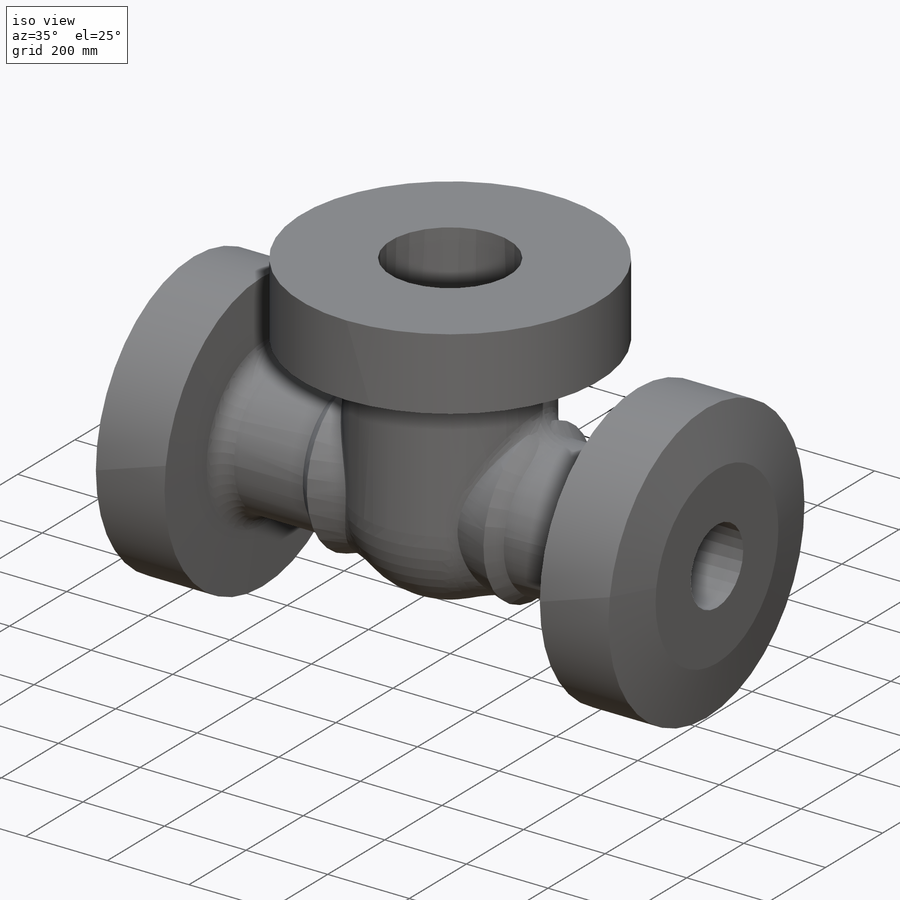
[diagram: iso view]
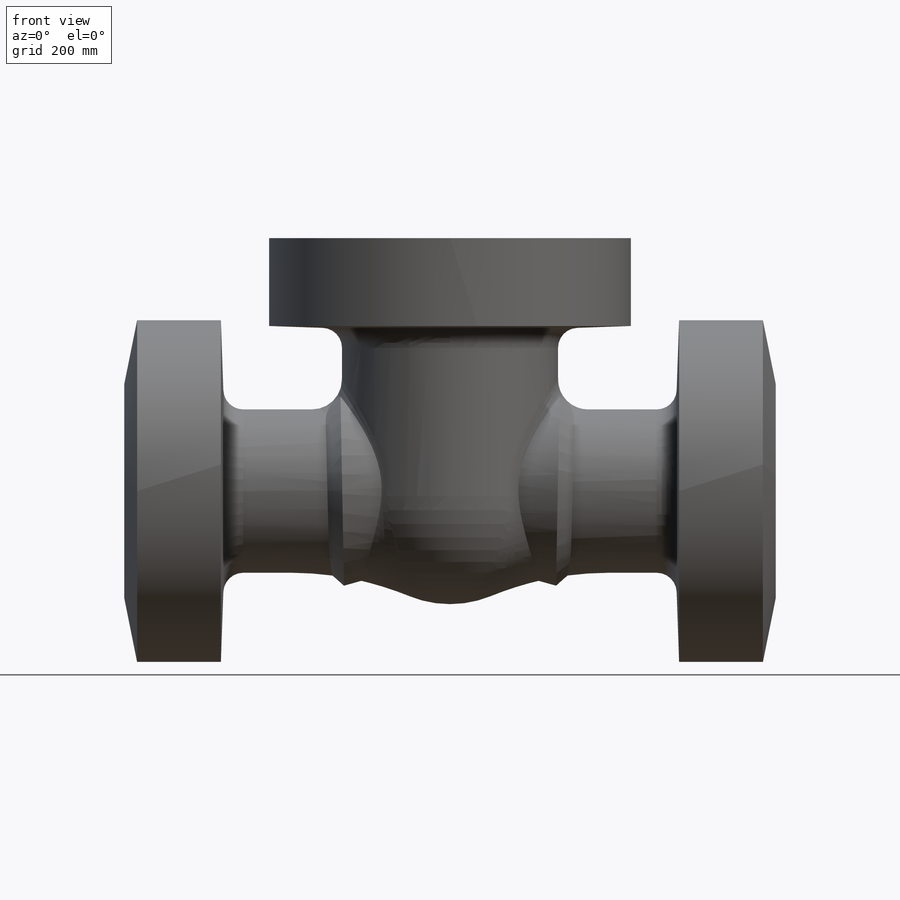
[diagram: front view]
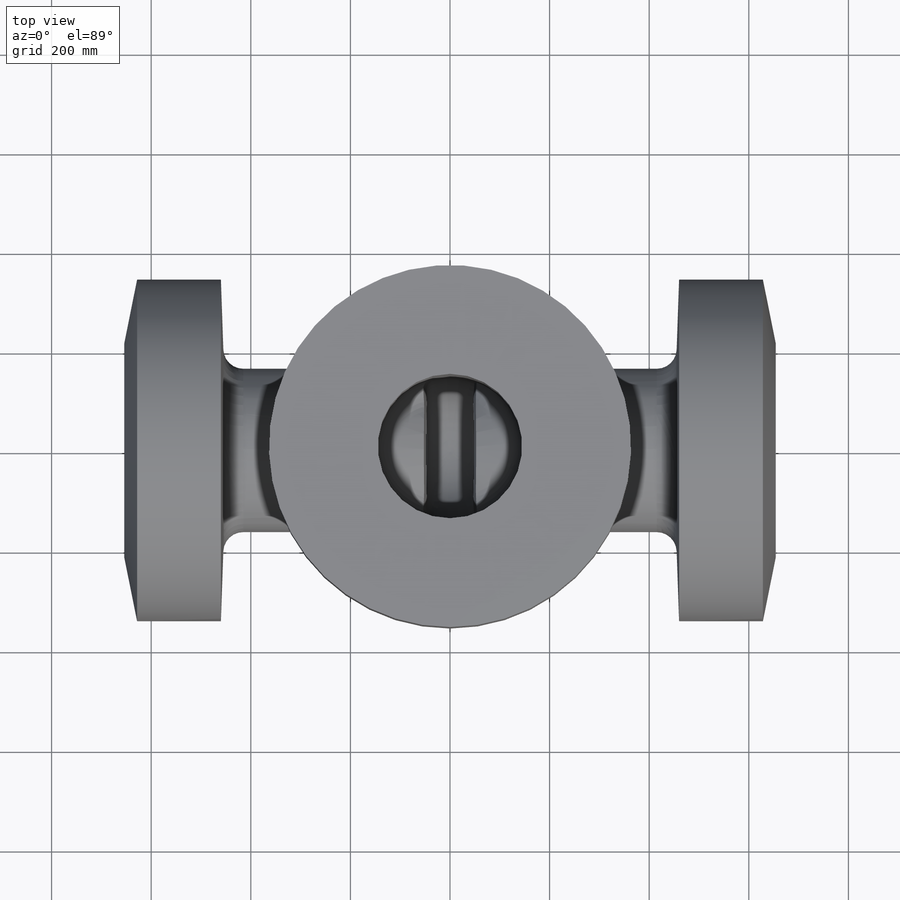
[diagram: top view]
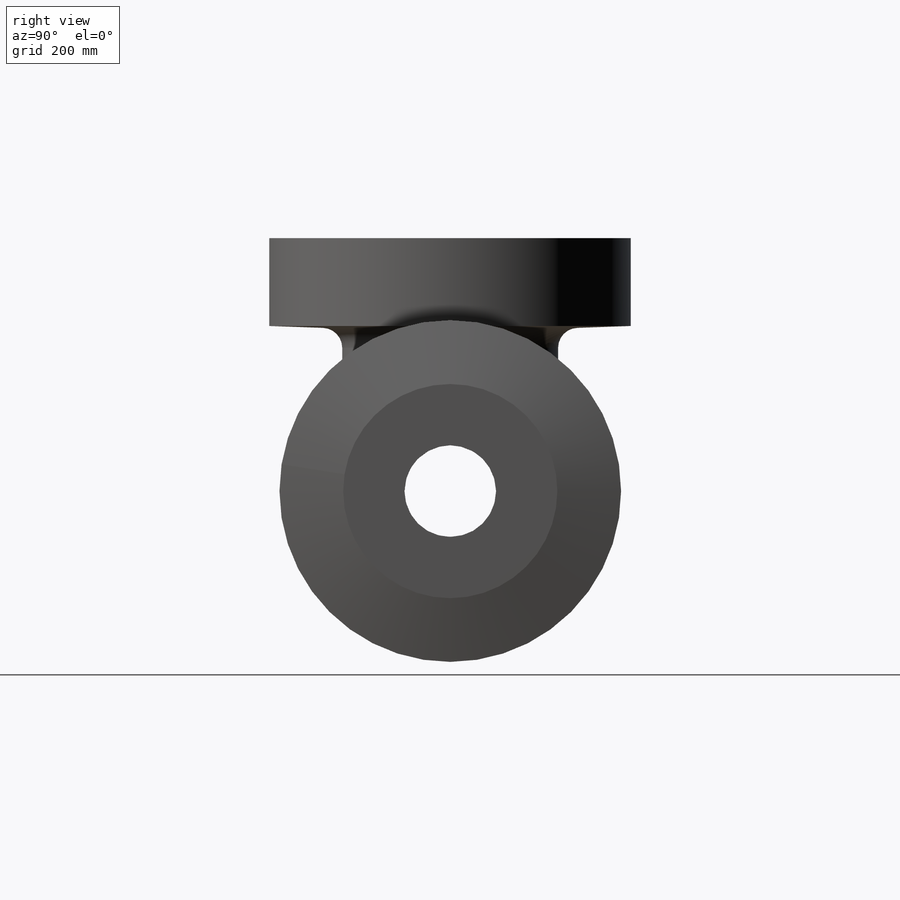
[diagram: right view]
SOLIDWORKS PART (.sldprt)
format: sldprt  version: not decoded by parser v0  size: 593,408 bytes
history: native  units: mm
features: sketch x6, revolve x4, fillet x3, material x1, extrude x1, shell x1, mirror x1, cut_extrude x1 (+13 scaffold rows collapsed)
feature tree (31):
  scaffold x13  (default folders/planes/origin — collapsed)
  material  "Material <not specified>"
  sketch  "Sketch1"  dims[D2=217.0mm D1=10.0mm D3=434.0mm D4=508.0mm]
  sketch  "Sketch3"  dims[D1=328.0mm]
  extrude  "Boss-Extrude2"  Depth=1308mm
  revolve  "Revolve2"  Angle=360deg
  shell  "Shell1"  Thickness=72mm
  sketch  "Sketch4"  dims[c1.D1=430.0mm c1.D2=686.0mm c1.D3=194.0mm c1.D4=179.0mm c2.D4=2.0deg]
  revolve  "Revolve3"  Angle=360deg
  sketch  "Sketch5"  dims[c1.D1=727.0mm c1.D2=176.5mm c1.D3=146.5mm c2.D3=2.0deg]
  revolve  "Revolve4"  Angle=360deg
  fillet  "Fillet3"  Radius=40mm
  sketch  "Sketch6"  dims[c1.D1=~1508.338219mm c2.D1=4.5deg c2.D2=206.5mm c2.D3=~192.153435mm c3.D3=4.5deg c3.D4=290.0mm c3.D5=~1508.338219mm c4.D5=15.0deg]
  revolve  "Revolve10"  Angle=360deg
  mirror  "Mirror1"
  sketch  "Sketch7"
  cut_extrude  "Cut-Extrude1"  [1 undecoded]
  fillet  "Fillet5"  Radius=40mm
  fillet  "Fillet6"  Radius=20mm
decode coverage: 14 of 17 modeling features carry decoded parameters
note: ~ marks probable driven/reference dimensions
note: 1 parameter value undecoded
note: suppression state not decoded; provenance and decode notes live in map.json
